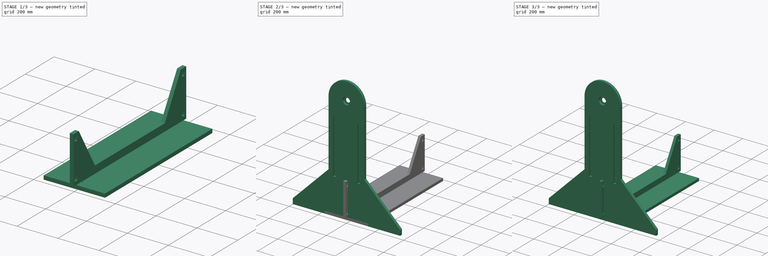
[diagram: build sequence overview — one tinted view per stage of 3, left to right]
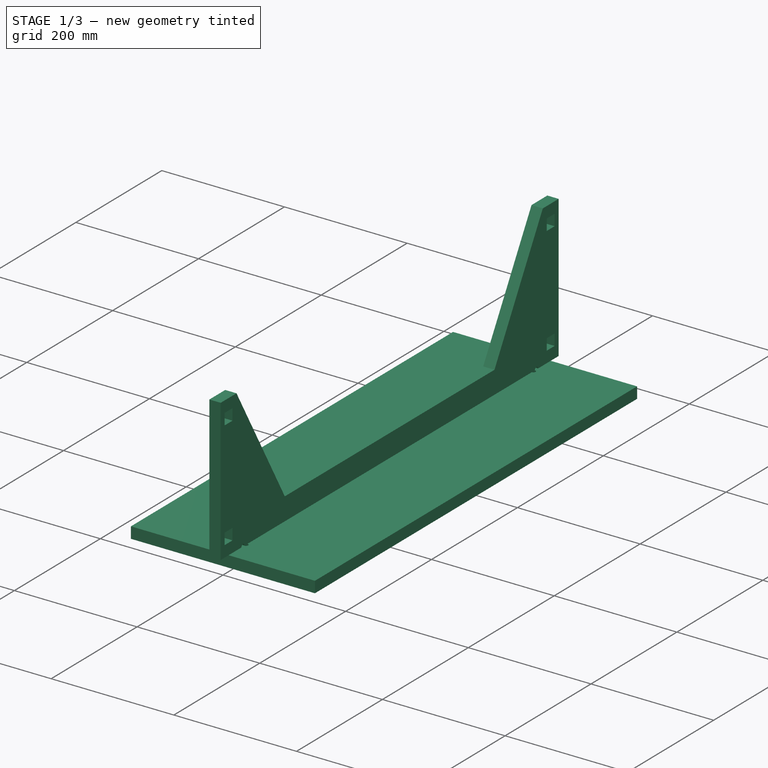
[diagram: stage 1 of 3 — iso view after this stage's code; geometry added in this stage tinted green]
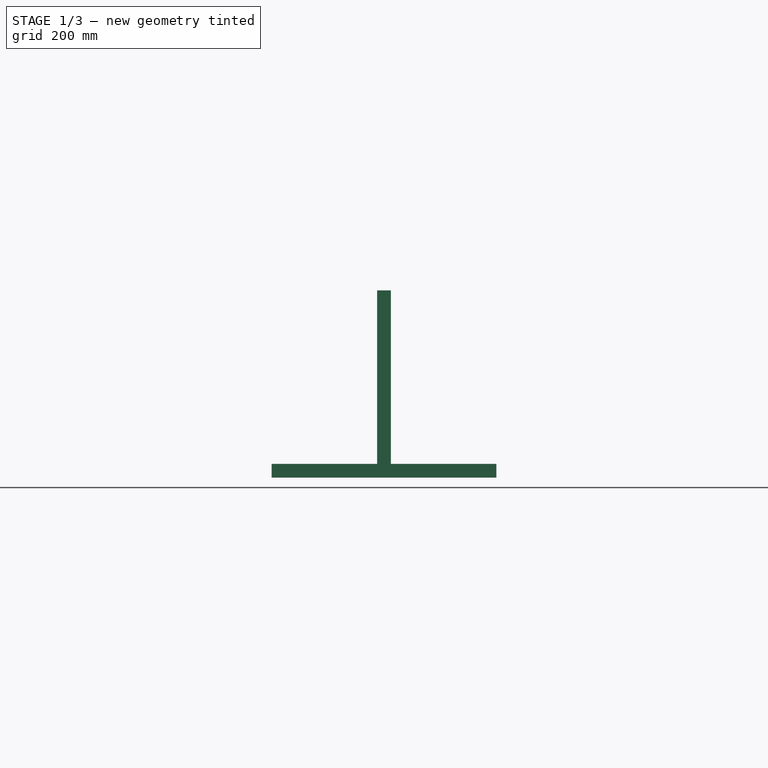
[diagram: stage 1 of 3 — front view after this stage's code; geometry added in this stage tinted green]
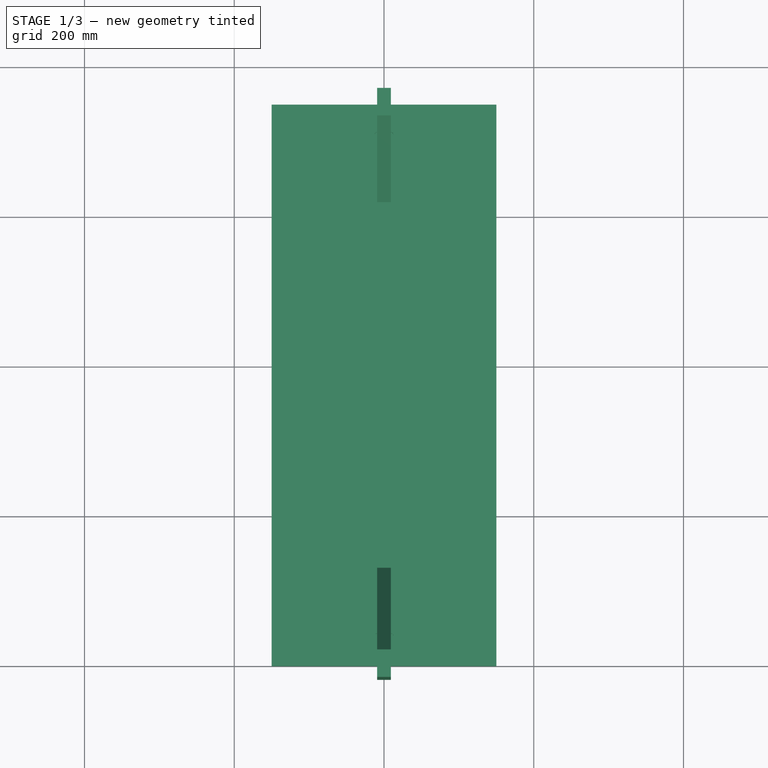
[diagram: stage 1 of 3 — top view after this stage's code; geometry added in this stage tinted green]
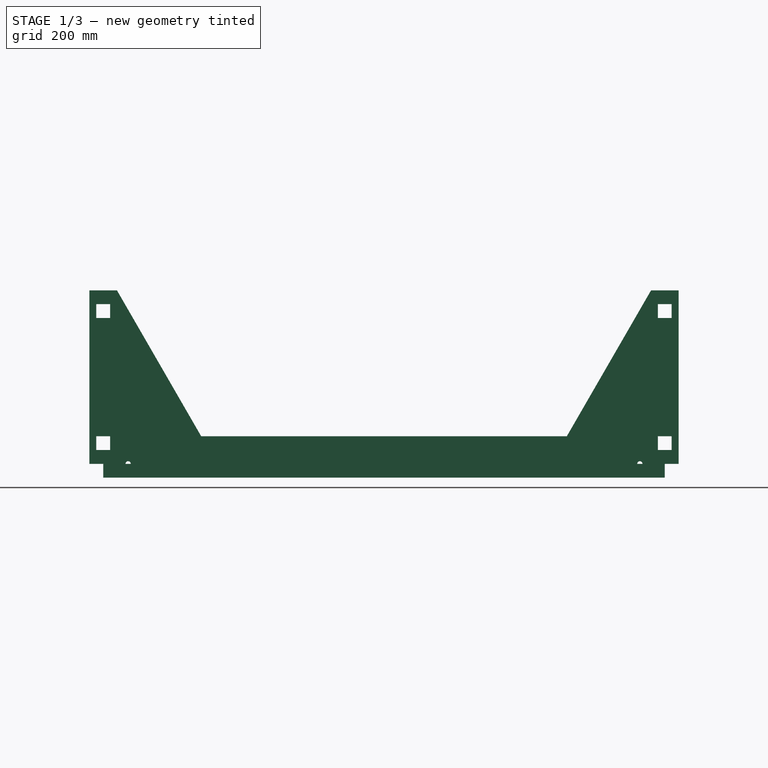
[diagram: stage 1 of 3 — right view after this stage's code; geometry added in this stage tinted green]
FCSTD DOCUMENT  (FreeCAD 0.19R23756 (Git))
Label: Support
License: All rights reserved
LicenseURL: http://en.wikipedia.org/wiki/All_rights_reserved
objects: Sketcher::SketchObject×6, PartDesign::Body×4, PartDesign::Pad×3, PartDesign::Pocket×2, Spreadsheet::Sheet×1, PartDesign::Hole×1, PartDesign::LinearPattern×1, PartDesign::FeatureBase×1
note: 24 computed .brp shape members not serialized (recipe doc carries the construction recipe); baked Part::Feature solids carry a one-line shape summary decoded from their .brp

FEATURE [PartDesign::Body] Body  label="sideplate1"
  Group = -> [Sketch,Pad,Pocket,Hole,LinearPattern]
  Origin = -> Origin
  Tip = -> LinearPattern
FEATURE [Sketcher::SketchObject] Sketch003
  FullyConstrained = true
  MapMode = 5
  Support = -> [XY_Plane001]
  expr: Constraints[10] = <<Dimensions>>.botplatew
  expr: Constraints[9] = <<Dimensions>>.width
  sketch-geometry (4):
    g0: LineSegment StartX=-150 StartY=750 StartZ=0 EndX=150 EndY=750 EndZ=0
    g1: LineSegment StartX=150 StartY=750 StartZ=0 EndX=150 EndY=0 EndZ=0
    g2: LineSegment StartX=150 StartY=0 StartZ=0 EndX=-150 EndY=0 EndZ=0
    g3: LineSegment StartX=-150 StartY=0 StartZ=0 EndX=-150 EndY=750 EndZ=0
  constraints (11):
    c: Coincident(g0,g1)
    c: Coincident(g1,g2)
    c: Coincident(g2,g3)
    c: Coincident(g3,g0)
    c: Horizontal(g0)
    c: Vertical(g1)
    c: Vertical(g3)
    c: Symmetric(g2,g1,g-2)
    c: PointOnObject(g2,g-1)
    c: Distance(g3) = 750
    c: Distance(g0) = 300
FEATURE [PartDesign::Pad] Pad001
  Direction = (1,1,1)
  Length = 18.4
  Length2 = 100
  Profile = -> Sketch003
  Type = 0
  expr: Length = <<Dimensions>>.thickness
FEATURE [PartDesign::Body] Body002  label="sideplate2"
  BaseFeature = -> Body
  Group = -> [Clone]
  Origin = -> Origin002
  Placement = pos=(-2.9e-14,748,0) rot=(0,0,1;3.14159rad)
  Tip = -> Clone
FEATURE [Sketcher::SketchObject] Sketch004
  FullyConstrained = true
  MapMode = 5
  Placement = pos=(0,0,0) rot=(0.57735,0.57735,0.57735;2.0944rad)
  Support = -> [YZ_Plane003]
  expr: Constraints[87] = <<Dimensions>>.thickness
  expr: Constraints[20] = <<Dimensions>>.thickness
  expr: Constraints[85] = <<Dimensions>>.thickness / 2
  expr: Constraints[37] = <<Dimensions>>.bitsize
  expr: Constraints[88] = <<Dimensions>>.thickness
  expr: Constraints[86] = <<Dimensions>>.thickness
  expr: Constraints[31] = <<Dimensions>>.width / 2 - <<Dimensions>>.thickness * 2
  expr: Constraints[25] = <<Dimensions>>.thickness * 3
  expr: Constraints[21] = <<Dimensions>>.height / 3
  expr: Constraints[32] = <<Dimensions>>.bearingW
  expr: Constraints[24] = <<Dimensions>>.thickness * 2
  expr: Constraints[22] = <<Dimensions>>.width / 2 - <<Dimensions>>.thickness
  expr: Constraints[90] = <<Dimensions>>.height / 3 - <<Dimensions>>.thickness
  expr: Constraints[11] = <<Dimensions>>.width / 2
  expr: Constraints[10] = <<Dimensions>>.height
  sketch-geometry (31):
    g0: LineSegment StartX=-18.4 StartY=18.4 StartZ=0 EndX=29.8 EndY=18.4 EndZ=0
    g1: LineSegment StartX=768.4 StartY=18.4 StartZ=0 EndX=768.4 EndY=250 EndZ=0
    g2: LineSegment StartX=768.4 StartY=250 StartZ=0 EndX=731.6 EndY=250 EndZ=0
    g3: LineSegment StartX=731.6 StartY=250 StartZ=0 EndX=619.132 EndY=55.2 EndZ=0
    g4: LineSegment StartX=619.132 StartY=55.2 StartZ=0 EndX=130.868 EndY=55.2 EndZ=0
    g5: LineSegment StartX=130.868 StartY=55.2 StartZ=0 EndX=18.4 EndY=250 EndZ=0
    g6: LineSegment StartX=18.4 StartY=250 StartZ=0 EndX=-18.4 EndY=250 EndZ=0
    g7: LineSegment StartX=-18.4 StartY=250 StartZ=0 EndX=-18.4 EndY=18.4 EndZ=0
    g8: LineSegment StartX=375 StartY=750 StartZ=0 EndX=375 EndY=0 EndZ=0
    g9: LineSegment StartX=713.2 StartY=18.4 StartZ=0 EndX=713.2 EndY=3.4 EndZ=0
    g10: LineSegment StartX=713.2 StartY=3.4 StartZ=0 EndX=36.8 EndY=3.4 EndZ=0
    g11: LineSegment StartX=36.8 StartY=3.4 StartZ=0 EndX=36.8 EndY=18.4 EndZ=0
    g12: LineSegment StartX=720.2 StartY=18.4 StartZ=0 EndX=768.4 EndY=18.4 EndZ=0
    g13: ArcOfCircle CenterX=33.3 CenterY=18.4 CenterZ=0 NormalX=0 NormalY=0 NormalZ=1 AngleXU=0 Radius=3.5 StartAngle=1e-16 EndAngle=3.14159
    g14: ArcOfCircle CenterX=716.7 CenterY=18.4 CenterZ=0 NormalX=0 NormalY=0 NormalZ=1 AngleXU=0 Radius=3.5 StartAngle=-1.8e-15 EndAngle=3.14159
    g15: LineSegment StartX=-9.2 StartY=231.6 StartZ=0 EndX=9.2 EndY=231.6 EndZ=0
    g16: LineSegment StartX=9.2 StartY=231.6 StartZ=0 EndX=9.2 EndY=213.2 EndZ=0
    g17: LineSegment StartX=9.2 StartY=213.2 StartZ=0 EndX=-9.2 EndY=213.2 EndZ=0
    g18: LineSegment StartX=-9.2 StartY=213.2 StartZ=0 EndX=-9.2 EndY=231.6 EndZ=0
    g19: LineSegment StartX=-9.2 StartY=55.2 StartZ=0 EndX=9.2 EndY=55.2 EndZ=0
    g20: LineSegment StartX=9.2 StartY=55.2 StartZ=0 EndX=9.2 EndY=36.8 EndZ=0
    g21: LineSegment StartX=9.2 StartY=36.8 StartZ=0 EndX=-9.2 EndY=36.8 EndZ=0
    g22: LineSegment StartX=-9.2 StartY=36.8 StartZ=0 EndX=-9.2 EndY=55.2 EndZ=0
    g23: LineSegment StartX=740.8 StartY=231.6 StartZ=0 EndX=759.2 EndY=231.6 EndZ=0
    g24: LineSegment StartX=759.2 StartY=231.6 StartZ=0 EndX=759.2 EndY=213.2 EndZ=0
    g25: LineSegment StartX=759.2 StartY=213.2 StartZ=0 EndX=740.8 EndY=213.2 EndZ=0
    g26: LineSegment StartX=740.8 StartY=213.2 StartZ=0 EndX=740.8 EndY=231.6 EndZ=0
    g27: LineSegment StartX=740.8 StartY=55.2 StartZ=0 EndX=759.2 EndY=55.2 EndZ=0
    g28: LineSegment StartX=759.2 StartY=55.2 StartZ=0 EndX=759.2 EndY=36.8 EndZ=0
    g29: LineSegment StartX=759.2 StartY=36.8 StartZ=0 EndX=740.8 EndY=36.8 EndZ=0
    g30: LineSegment StartX=740.8 StartY=36.8 StartZ=0 EndX=740.8 EndY=55.2 EndZ=0
  constraints (91):
    c: Horizontal(g0)
    c: Coincident(g1,g12)
    c: Vertical(g1)
    c: Coincident(g3,g2)
    c: Coincident(g4,g3)
    c: Coincident(g5,g4)
    c: Coincident(g6,g5)
    c: Coincident(g7,g6)
    c: Coincident(g7,g0)
    c: PointOnObject(g8,g-1)
    c: Distance(g8) = 750
    c: Distance(g8,g-1) = 375
    c: Symmetric(g4,g3,g8)
    c: Symmetric(g0,g12,g8)
    c: Vertical(g7)
    c: Equal(g7,g1)
    c: Horizontal(g6)
    c: Coincident(g2,g1)
    c: Horizontal(g2)
    c: Equal(g6,g2)
    c: Distance(g-1,g0) = 18.4
    c: Distance(g6,g-1) = 250
    c: Distance(g5,g8) = 356.6
    c: Angle(g7,g5) = 0.523599
    c: Distance(g6) = 36.8
    c: Distance(g4,g-1) = 55.2
    c: Coincident(g9,g10)
    c: Coincident(g10,g11)
    c: Vertical(g9)
    c: Vertical(g11)
    c: Tangent(g0,g12)
    c: Distance(g11,g8) = 338.2
    c: Distance(g11) = 15
    c: PointOnObject(g13,g0)
    c: Coincident(g13,g11)
    c: PointOnObject(g14,g12)
    c: Coincident(g14,g9)
    c: Diameter(g14) = 7
    c: Equal(g13,g14)
    c: Coincident(g0,g13)
    c: Coincident(g12,g14)
    c: Horizontal(g13,g11)
    c: Horizontal(g14,g9)
    c: Symmetric(g9,g10,g8)
    c: Coincident(g15,g16)
    c: Coincident(g16,g17)
    c: Coincident(g17,g18)
    c: Coincident(g18,g15)
    c: Horizontal(g15)
    c: Horizontal(g17)
    c: Vertical(g16)
    c: Vertical(g18)
    c: Coincident(g19,g20)
    c: Coincident(g20,g21)
    c: Coincident(g21,g22)
    c: Coincident(g22,g19)
    c: Horizontal(g19)
    c: Horizontal(g21)
    c: Vertical(g20)
    c: Vertical(g22)
    c: Vertical(g19,g17)
    c: Vertical(g16,g19)
    c: Coincident(g23,g24)
    c: Coincident(g24,g25)
    c: Coincident(g25,g26)
    c: Coincident(g26,g23)
    c: Horizontal(g23)
    c: Horizontal(g25)
    c: Vertical(g24)
    c: Vertical(g26)
    c: Coincident(g27,g28)
    c: Coincident(g28,g29)
    c: Coincident(g29,g30)
    c: Coincident(g30,g27)
    c: Horizontal(g27)
    c: Horizontal(g29)
    c: Vertical(g28)
    c: Vertical(g30)
    c: Vertical(g27,g24)
    c: Vertical(g25,g27)
    c: Horizontal(g25,g16)
    c: Equal(g16,g26)
    c: Equal(g28,g24)
    c: Equal(g30,g20)
    c: Equal(g19,g27)
    c: Distance(g21,g7) = 9.2
    c: Distance(g21) = 18.4
    c: Distance(g21,g0) = 18.4
    c: Distance(g22) = 18.4
    c: Symmetric(g29,g20,g8)
    c: Distance(g15,g-1) = 231.6
FEATURE [PartDesign::Pad] Pad002
  Direction = (1,1,1)
  Length = 18.4
  Length2 = 100
  Midplane = true
  Placement = pos=(0,0,0) rot=(0.57735,0.57735,0.57735;2.0944rad)
  Profile = -> Sketch004
  Type = 0
  expr: Length = <<Dimensions>>.thickness
FEATURE [PartDesign::Body] Body003  label="supportplate"
  Group = -> [Sketch004,Pad002]
  Origin = -> Origin003
  Tip = -> Pad002
FEATURE [Sketcher::SketchObject] Sketch005
  FullyConstrained = true
  MapMode = 5
  Placement = pos=(0,0,18.4) rot=(0,0,1;0rad)
  Support = -> [Pad001]
  expr: Constraints[29] = <<Dimensions>>.width - <<Dimensions>>.thickness * 4
  expr: Constraints[19] = <<Dimensions>>.bitsize
  expr: Constraints[7] = <<Dimensions>>.thickness * 2
  expr: Constraints[6] = <<Dimensions>>.thickness
  expr: Constraints[2] = <<Dimensions>>.width
  sketch-geometry (9):
    g0: LineSegment StartX=0 StartY=0 StartZ=0 EndX=0 EndY=750 EndZ=0
    g1: LineSegment StartX=-9.2 StartY=713.2 StartZ=0 EndX=9.2 EndY=713.2 EndZ=0
    g2: LineSegment StartX=9.2 StartY=706.2 StartZ=0 EndX=9.2 EndY=43.8 EndZ=0
    g3: LineSegment StartX=9.2 StartY=36.8 StartZ=0 EndX=-9.2 EndY=36.8 EndZ=0
    g4: LineSegment StartX=-9.2 StartY=43.8 StartZ=0 EndX=-9.2 EndY=706.2 EndZ=0
    g5: ArcOfCircle CenterX=9.2 CenterY=709.7 CenterZ=0 NormalX=0 NormalY=0 NormalZ=1 AngleXU=0 Radius=3.5 StartAngle=4.71239 EndAngle=7.85398
    g6: ArcOfCircle CenterX=-9.2 CenterY=709.7 CenterZ=0 NormalX=0 NormalY=0 NormalZ=1 AngleXU=0 Radius=3.5 StartAngle=1.5708 EndAngle=4.71239
    g7: ArcOfCircle CenterX=-9.2 CenterY=40.3 CenterZ=0 NormalX=0 NormalY=0 NormalZ=1 AngleXU=0 Radius=3.5 StartAngle=1.5708 EndAngle=4.71239
    g8: ArcOfCircle CenterX=9.2 CenterY=40.3 CenterZ=0 NormalX=0 NormalY=0 NormalZ=1 AngleXU=0 Radius=3.5 StartAngle=4.71239 EndAngle=7.85398
  constraints (30):
    c: Coincident(g0,g-1)
    c: Vertical(g0)
    c: Distance(g0) = 750
    c: Horizontal(g1)
    c: Vertical(g2)
    c: Vertical(g4)
    c: Distance(g3) = 18.4
    c: DistanceY(g-1,g3) = 36.8
    c: PointOnObject(g5,g2)
    c: Coincident(g5,g1)
    c: PointOnObject(g6,g4)
    c: Coincident(g6,g1)
    c: PointOnObject(g7,g4)
    c: Coincident(g7,g3)
    c: PointOnObject(g8,g2)
    c: Coincident(g8,g3)
    c: Horizontal(g7,g8)
    c: Equal(g6,g5)
    c: Equal(g5,g7)
    c: Diameter(g7) = 7
    c: Coincident(g4,g7)
    c: Vertical(g7,g3)
    c: Coincident(g2,g8)
    c: Coincident(g2,g5)
    c: Coincident(g4,g6)
    c: Vertical(g1,g6)
    c: Vertical(g1,g5)
    c: Vertical(g3,g8)
    c: Symmetric(g3,g3,g0)
    c: Distance(g3,g1) = 676.4
FEATURE [PartDesign::Pocket] Pocket001
  BaseFeature = -> Pad001
  Length = 15
  Length2 = 100
  Profile = -> Sketch005
  Type = 0
  expr: Length = <<Dimensions>>.bearingW
FEATURE [PartDesign::Body] Body001  label="bottomplate"
  Group = -> [Sketch003,Pad001,Sketch005,Pocket001]
  Origin = -> Origin001
  Tip = -> Pocket001
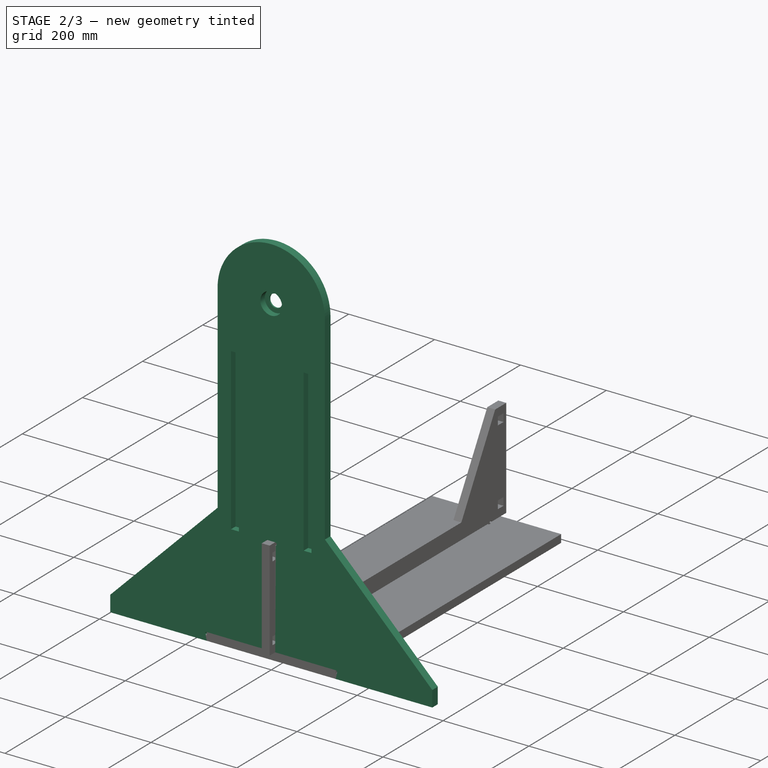
[diagram: stage 2 of 3 — iso view after this stage's code; geometry added in this stage tinted green]
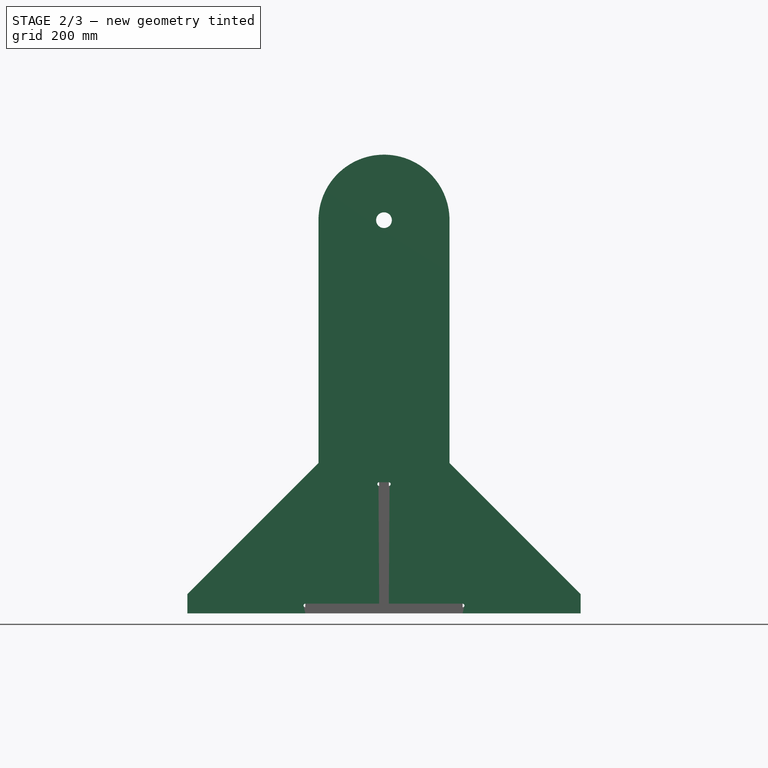
[diagram: stage 2 of 3 — front view after this stage's code; geometry added in this stage tinted green]
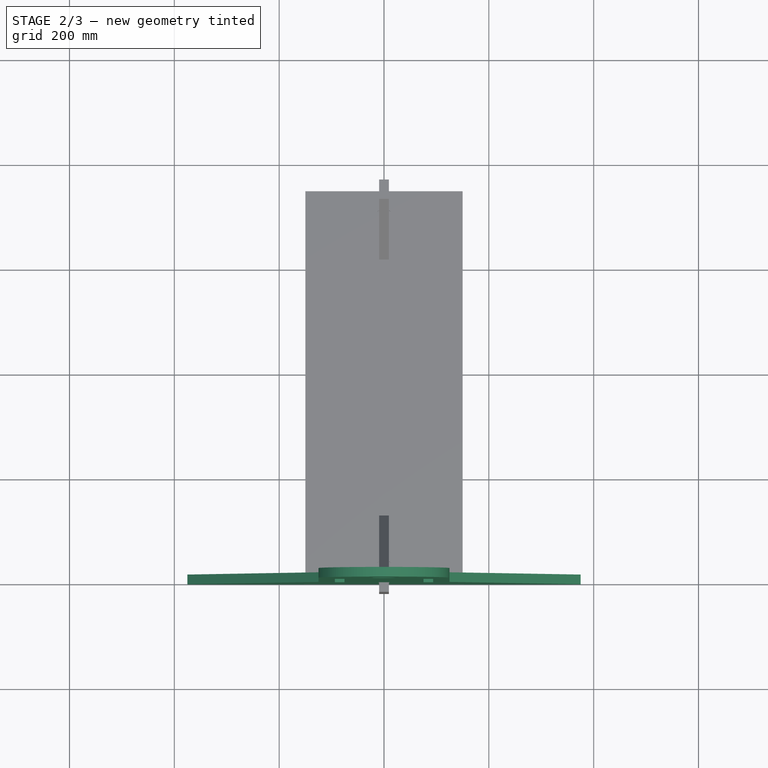
[diagram: stage 2 of 3 — top view after this stage's code; geometry added in this stage tinted green]
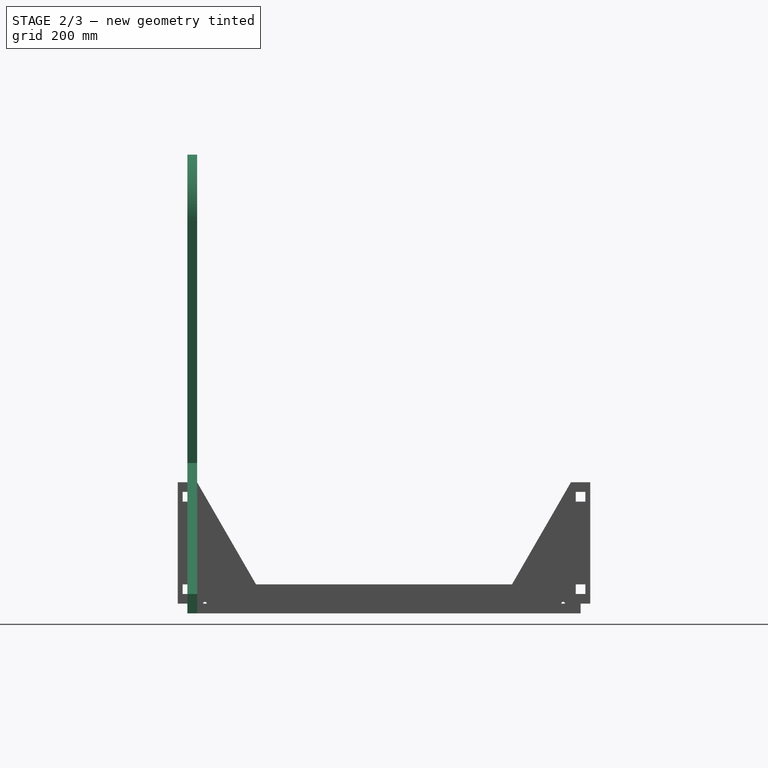
[diagram: stage 2 of 3 — right view after this stage's code; geometry added in this stage tinted green]
FEATURE [Sketcher::SketchObject] Sketch
  FullyConstrained = true
  MapMode = 5
  Placement = pos=(0,0,0) rot=(1,0,0;1.5708rad)
  Support = -> [XZ_Plane]
  expr: Constraints[52] = <<Dimensions>>.botplatew
  expr: Constraints[16] = 2 * <<Dimensions>>.thickness
  expr: Constraints[63] = <<Dimensions>>.height / 3
  expr: Constraints[49] = <<Dimensions>>.thickness
  expr: Constraints[18] = <<Dimensions>>.shaftD
  expr: Constraints[31] = <<Dimensions>>.thickness
  expr: Constraints[7] = <<Dimensions>>.width / 3
  expr: Constraints[42] = <<Dimensions>>.height
  expr: Constraints[32] = <<Dimensions>>.bitsize
  expr: Constraints[64] = <<Dimensions>>.bitsize
  expr: Constraints[39] = <<Dimensions>>.width
  sketch-geometry (22):
    g0: LineSegment StartX=125 StartY=750 StartZ=0 EndX=125 EndY=286.8 EndZ=0
    g1: LineSegment StartX=-125 StartY=286.8 StartZ=0 EndX=-125 EndY=750 EndZ=0
    g2: LineSegment StartX=375 StartY=36.8 StartZ=0 EndX=375 EndY=0 EndZ=0
    g3: LineSegment StartX=-375 StartY=0 StartZ=0 EndX=-375 EndY=36.8 EndZ=0
    g4: ArcOfCircle CenterX=5.2e-15 CenterY=750 CenterZ=0 NormalX=0 NormalY=0 NormalZ=1 AngleXU=0 Radius=125 StartAngle=0 EndAngle=3.14159
    g5: LineSegment StartX=-375 StartY=36.8 StartZ=0 EndX=-125 EndY=286.8 EndZ=0
    g6: LineSegment StartX=125 StartY=286.8 StartZ=0 EndX=375 EndY=36.8 EndZ=0
    g7: Circle CenterX=5.2e-15 CenterY=750 CenterZ=0 NormalX=0 NormalY=0 NormalZ=1 AngleXU=0 Radius=15
    g8: LineSegment StartX=-150 StartY=18.4 StartZ=0 EndX=-9.2 EndY=18.4 EndZ=0
    g9: LineSegment StartX=150 StartY=11.4 StartZ=0 EndX=150 EndY=0 EndZ=0
    g10: LineSegment StartX=-150 StartY=0 StartZ=0 EndX=-150 EndY=18.4 EndZ=0
    g11: ArcOfCircle CenterX=-150 CenterY=14.9 CenterZ=0 NormalX=0 NormalY=0 NormalZ=1 AngleXU=0 Radius=3.5 StartAngle=1.5708 EndAngle=1.5708
    g12: ArcOfCircle CenterX=150 CenterY=14.9 CenterZ=0 NormalX=0 NormalY=0 NormalZ=1 AngleXU=0 Radius=3.5 StartAngle=4.71239 EndAngle=7.85398
    g13: LineSegment StartX=-375 StartY=0 StartZ=0 EndX=-150 EndY=0 EndZ=0
    g14: LineSegment StartX=150 StartY=0 StartZ=0 EndX=375 EndY=0 EndZ=0
    g15: LineSegment StartX=-9.2 StartY=18.4 StartZ=0 EndX=9.2 EndY=18.4 EndZ=0
    g16: LineSegment StartX=9.2 StartY=18.4 StartZ=0 EndX=9.2 EndY=243 EndZ=0
    g17: LineSegment StartX=9.2 StartY=250 StartZ=0 EndX=-9.2 EndY=250 EndZ=0
    g18: LineSegment StartX=-9.2 StartY=243 StartZ=0 EndX=-9.2 EndY=18.4 EndZ=0
    g19: LineSegment StartX=9.2 StartY=18.4 StartZ=0 EndX=150 EndY=18.4 EndZ=0
    g20: ArcOfCircle CenterX=-9.2 CenterY=246.5 CenterZ=0 NormalX=0 NormalY=0 NormalZ=1 AngleXU=0 Radius=3.5 StartAngle=1.5708 EndAngle=4.71239
    g21: ArcOfCircle CenterX=9.2 CenterY=246.5 CenterZ=0 NormalX=0 NormalY=0 NormalZ=1 AngleXU=0 Radius=3.5 StartAngle=4.71239 EndAngle=7.85398
  constraints (65):
    c: Vertical(g0)
    c: Vertical(g1)
    c: Vertical(g2)
    c: Vertical(g3)
    c: Symmetric(g1,g0,g-2)
    c: Coincident(g6,g0)
    c: Symmetric(g2,g3,g-2)
    c: Diameter(g4) = 250
    c: Coincident(g0,g4)
    c: Coincident(g4,g1)
    c: Horizontal(g1,g0)
    c: Horizontal(g4,g1)
    c: Coincident(g1,g5)
    c: Coincident(g5,g3)
    c: Coincident(g6,g2)
    c: Equal(g3,g2)
    c: Distance(g3) = 36.8
    c: Coincident(g7,g4)
    c: Diameter(g7) = 30
    c: Vertical(g9)
    c: Vertical(g10)
    c: Symmetric(g8,g19,g-2)
    c: PointOnObject(g11,g10)
    c: Coincident(g11,g8)
    c: PointOnObject(g12,g9)
    c: Coincident(g12,g19)
    c: Equal(g11,g12)
    c: Coincident(g10,g11)
    c: Coincident(g9,g12)
    c: Vertical(g8,g11)
    c: Vertical(g19,g12)
    c: Distance(g19,g9) = 18.4
    c: Diameter(g11) = 7
    c: Coincident(g13,g3)
    c: Coincident(g13,g10)
    c: Horizontal(g13)
    c: Coincident(g14,g9)
    c: Coincident(g14,g2)
    c: Horizontal(g14)
    c: Distance(g3,g2) = 750
    c: PointOnObject(g3,g-1)
    c: Angle(g13,g5) = 0.785398
    c: Distance(g4,g-1) = 750
    c: Coincident(g15,g16)
    c: Coincident(g18,g15)
    c: Horizontal(g17)
    c: Vertical(g16)
    c: Vertical(g18)
    c: Symmetric(g15,g15,g-2)
    c: Distance(g17) = 18.4
    c: Coincident(g8,g15)
    c: Tangent(g8,g19)
    c: Distance(g11,g12) = 300
    c: Equal(g8,g19)
    c: PointOnObject(g20,g18)
    c: Coincident(g20,g17)
    c: PointOnObject(g21,g16)
    c: Coincident(g21,g17)
    c: Equal(g20,g21)
    c: Coincident(g18,g20)
    c: Coincident(g16,g21)
    c: Vertical(g17,g20)
    c: Vertical(g17,g21)
    c: Distance(g17,g-1) = 250
    c: Diameter(g20) = 7
FEATURE [Spreadsheet::Sheet] Spreadsheet  label="Dimensions"
  cells = B2=thickness; C2(thickness)=18.4; B3=height; C3(height)=750; B4=width; C4(width)=750; B5=shaftD; C5(shaftD)=30; B6=botplatew; C6(botplatew)=300; B7=bitsize; C7(bitsize)=7; B8=bearingD; C8(bearindD)=50.8; B9=bearingW; C9(bearingW)=15
FEATURE [Sketcher::SketchObject] Sketch001
  FullyConstrained = true
  MapMode = 3
  Placement = pos=(0,0,0) rot=(1,0,0;1.5708rad)
  expr: Constraints[27] = <<Dimensions>>.height
  expr: Constraints[26] = <<Dimensions>>.height
  expr: Constraints[24] = <<Dimensions>>.height / 3
  expr: Constraints[23] = <<Dimensions>>.width / 4
  expr: Constraints[11] = <<Dimensions>>.thickness
  expr: Constraints[25] = <<Dimensions>>.width / 2
  expr: Constraints[2] = <<Dimensions>>.bearindD
  sketch-geometry (10):
    g0: LineSegment StartX=0 StartY=0 StartZ=0 EndX=0 EndY=750 EndZ=0
    g1: Circle CenterX=0 CenterY=750 CenterZ=0 NormalX=0 NormalY=0 NormalZ=1 AngleXU=0 Radius=25.4
    g2: LineSegment StartX=-75.35 StartY=625 StartZ=0 EndX=-93.75 EndY=625 EndZ=0
    g3: LineSegment StartX=-93.75 StartY=625 StartZ=0 EndX=-93.75 EndY=250 EndZ=0
    g4: LineSegment StartX=-93.75 StartY=250 StartZ=0 EndX=-75.35 EndY=250 EndZ=0
    g5: LineSegment StartX=-75.35 StartY=250 StartZ=0 EndX=-75.35 EndY=625 EndZ=0
    g6: LineSegment StartX=93.75 StartY=625 StartZ=0 EndX=75.35 EndY=625 EndZ=0
    g7: LineSegment StartX=75.35 StartY=625 StartZ=0 EndX=75.35 EndY=250 EndZ=0
    g8: LineSegment StartX=75.35 StartY=250 StartZ=0 EndX=93.75 EndY=250 EndZ=0
    g9: LineSegment StartX=93.75 StartY=250 StartZ=0 EndX=93.75 EndY=625 EndZ=0
  constraints (29):
    c: Coincident(g0,g-1)
    c: Vertical(g0)
    c: Diameter(g1) = 50.8
    c: Coincident(g2,g3)
    c: Coincident(g3,g4)
    c: Coincident(g4,g5)
    c: Coincident(g5,g2)
    c: Horizontal(g2)
    c: Horizontal(g4)
    c: Vertical(g3)
    c: Vertical(g5)
    c: Distance(g2) = 18.4
    c: Coincident(g6,g7)
    c: Coincident(g7,g8)
    c: Coincident(g8,g9)
    c: Coincident(g9,g6)
    c: Horizontal(g6)
    c: Horizontal(g8)
    c: Vertical(g7)
    c: Vertical(g9)
    c: Equal(g2,g6)
    c: Equal(g5,g9)
    c: Symmetric(g3,g8,g0)
    c: Distance(g3,g8) = 187.5
    c: DistanceY(g-1,g4) = 250
    c: Distance(g3) = 375
    c: Distance(g1,g-1) = 750
    c: Distance(g0) = 750
    c: PointOnObject(g1,g0)
FEATURE [Sketcher::SketchObject] Sketch002
  FullyConstrained = true
  Placement = pos=(0,0,0) rot=(1,0,0;1.5708rad)
  expr: Constraints[7] = <<Dimensions>>.height
  expr: Constraints[6] = <<Dimensions>>.width / 4 - <<Dimensions>>.thickness
  expr: Constraints[3] = <<Dimensions>>.bitsize
  expr: Constraints[2] = <<Dimensions>>.height / 3 + <<Dimensions>>.thickness
  sketch-geometry (3):
    g0: LineSegment StartX=0 StartY=0 StartZ=0 EndX=0 EndY=750 EndZ=0
    g1: Circle CenterX=84.55 CenterY=268.4 CenterZ=0 NormalX=0 NormalY=0 NormalZ=1 AngleXU=0 Radius=3.5
    g2: Circle CenterX=-84.55 CenterY=268.4 CenterZ=0 NormalX=0 NormalY=0 NormalZ=1 AngleXU=0 Radius=3.5
  constraints (8):
    c: Coincident(g0,g-1)
    c: Vertical(g0)
    c: Distance(g1,g-1) = 268.4
    c: Diameter(g1) = 7
    c: Equal(g2,g1)
    c: Symmetric(g2,g1,g0)
    c: Distance(g2,g1) = 169.1
    c: Distance(g0) = 750
FEATURE [PartDesign::Pad] Pad
  Direction = (1,1,1)
  Length = 18.4
  Length2 = 100
  Placement = pos=(0,0,0) rot=(1,0,0;1.5708rad)
  Profile = -> Sketch
  Reversed = true
  Type = 0
  expr: Length = <<Dimensions>>.thickness
FEATURE [PartDesign::Pocket] Pocket
  BaseFeature = -> Pad
  Length = 15
  Length2 = 100
  Placement = pos=(0,0,0) rot=(1,0,0;1.5708rad)
  Profile = -> Sketch001
  Type = 0
  expr: Length = <<Dimensions>>.bearingW
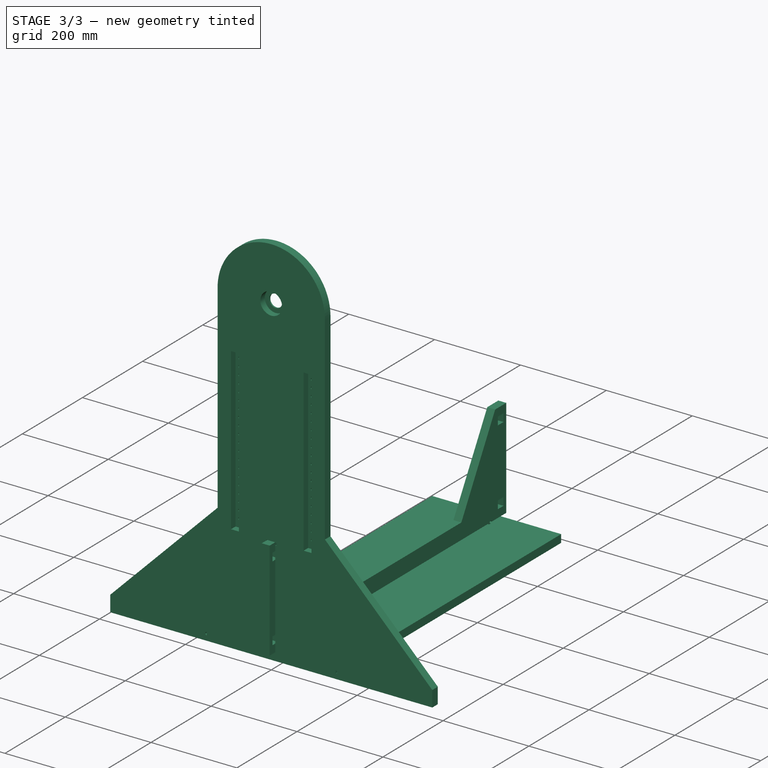
[diagram: stage 3 of 3 — iso view after this stage's code; geometry added in this stage tinted green]
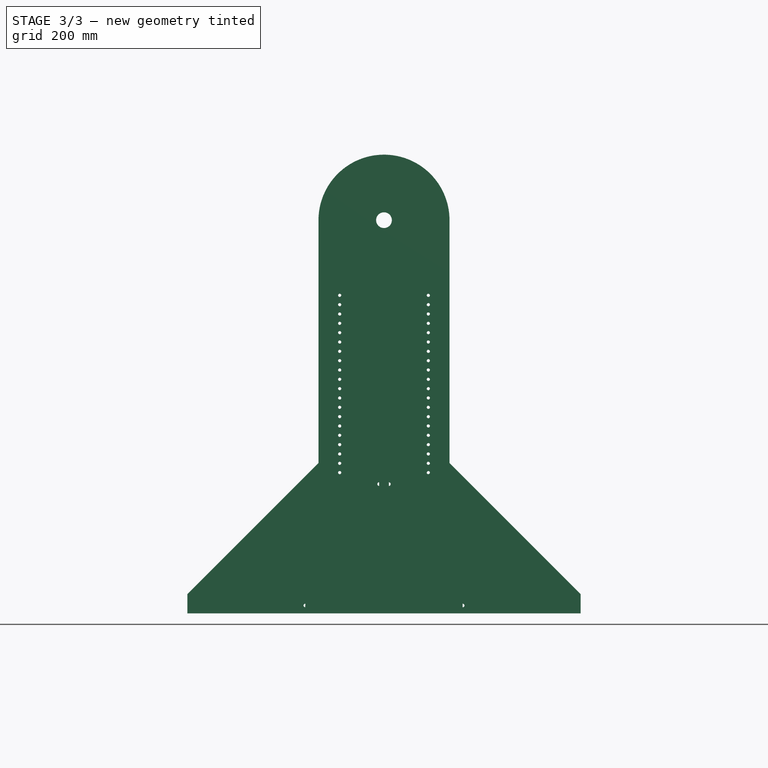
[diagram: stage 3 of 3 — front view after this stage's code; geometry added in this stage tinted green]
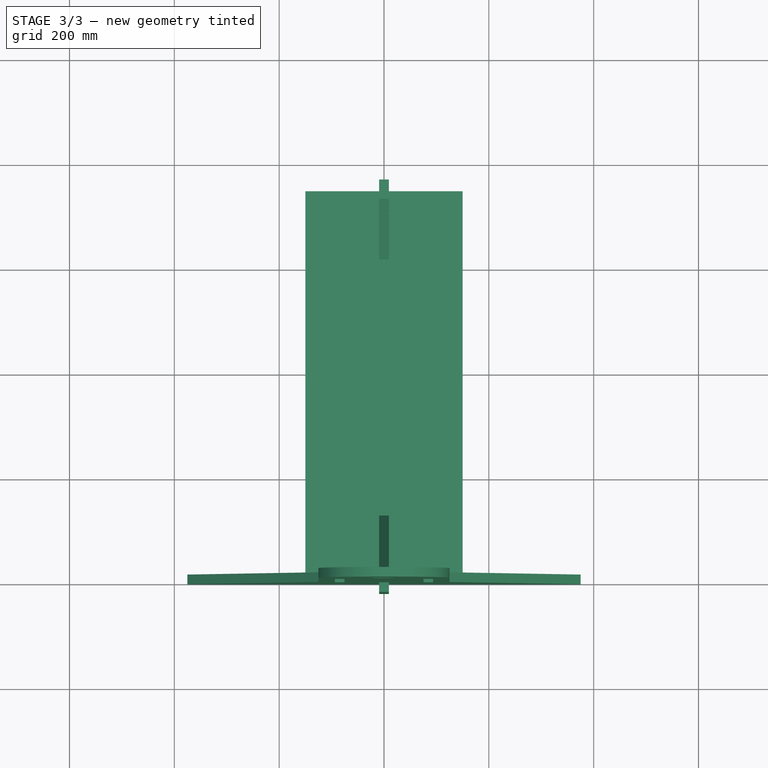
[diagram: stage 3 of 3 — top view after this stage's code; geometry added in this stage tinted green]
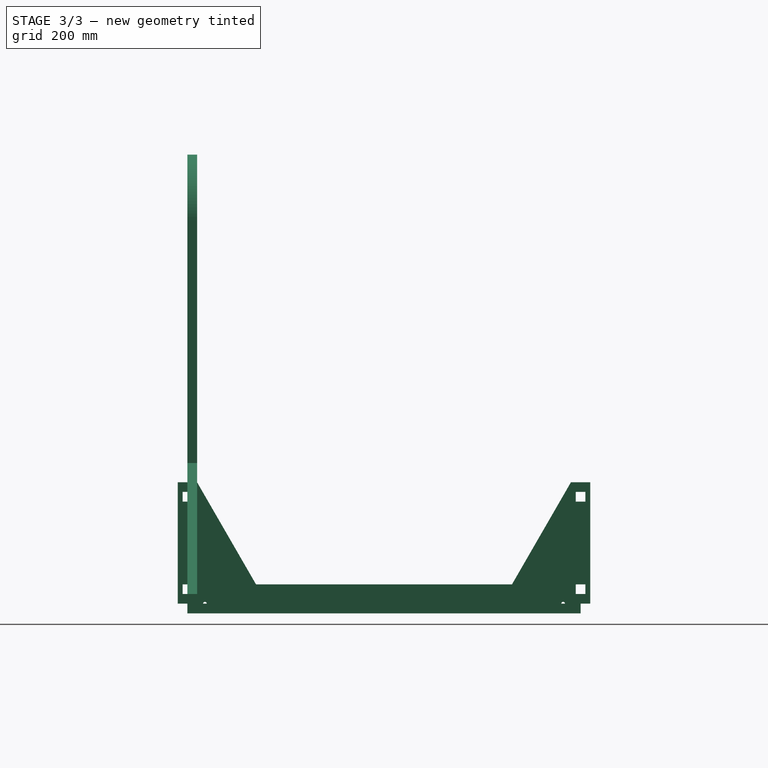
[diagram: stage 3 of 3 — right view after this stage's code; geometry added in this stage tinted green]
FEATURE [PartDesign::Hole] Hole
  BaseFeature = -> Pocket
  Depth = 25
  DepthType = 0
  Diameter = 6
  DrillPoint = 1
  DrillPointAngle = 118
  HoleCutCountersinkAngle = 90
  HoleCutDepth = 0
  HoleCutDiameter = 0
  HoleCutType = 0
  ModelActualThread = false
  Placement = pos=(0,0,0) rot=(1,0,0;1.5708rad)
  Profile = -> Sketch002
  Tapered = false
  TaperedAngle = 90
  ThreadAngle = 0
  ThreadClass = 0
  ThreadCutOffInner = 0
  ThreadCutOffOuter = 0
  ThreadDirection = 0
  ThreadFit = 0
  ThreadPitch = 0
  ThreadSize = 0
  ThreadType = 0
  Threaded = false
FEATURE [PartDesign::LinearPattern] LinearPattern
  BaseFeature = -> Hole
  Direction = -> Sketch002 [V_Axis]
  Length = 338.2
  Occurrences = 20
  Originals = -> [Hole]
  Placement = pos=(0,0,0) rot=(1,0,0;1.5708rad)
  expr: Occurrences = <<Dimensions>>.width / <<Dimensions>>.thickness / 2
  expr: Length = <<Dimensions>>.width / 2 - 2 * <<Dimensions>>.thickness
FEATURE [PartDesign::FeatureBase] Clone
  BaseFeature = -> Body
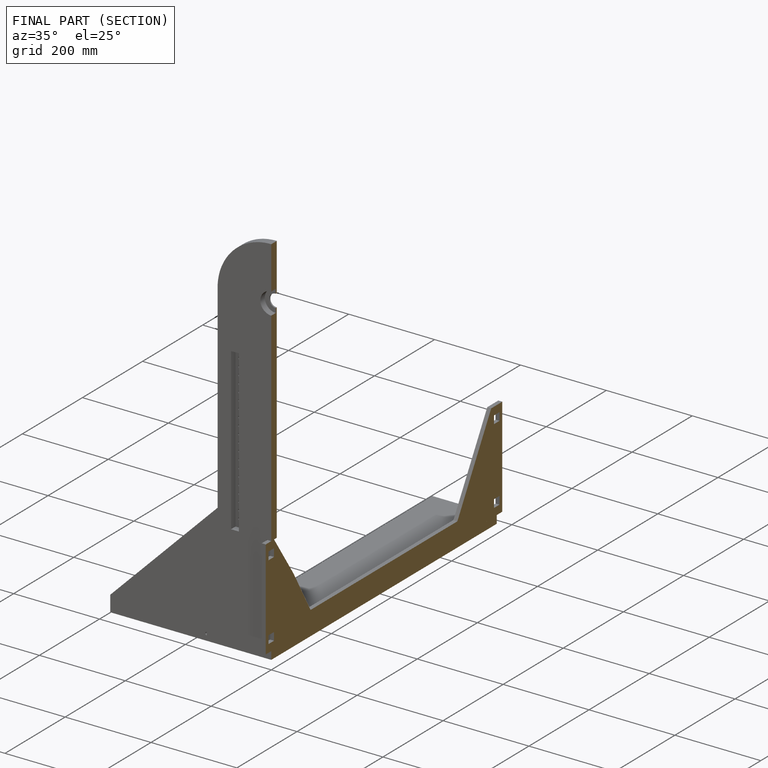
[diagram: finished part — half-section view (interior)]
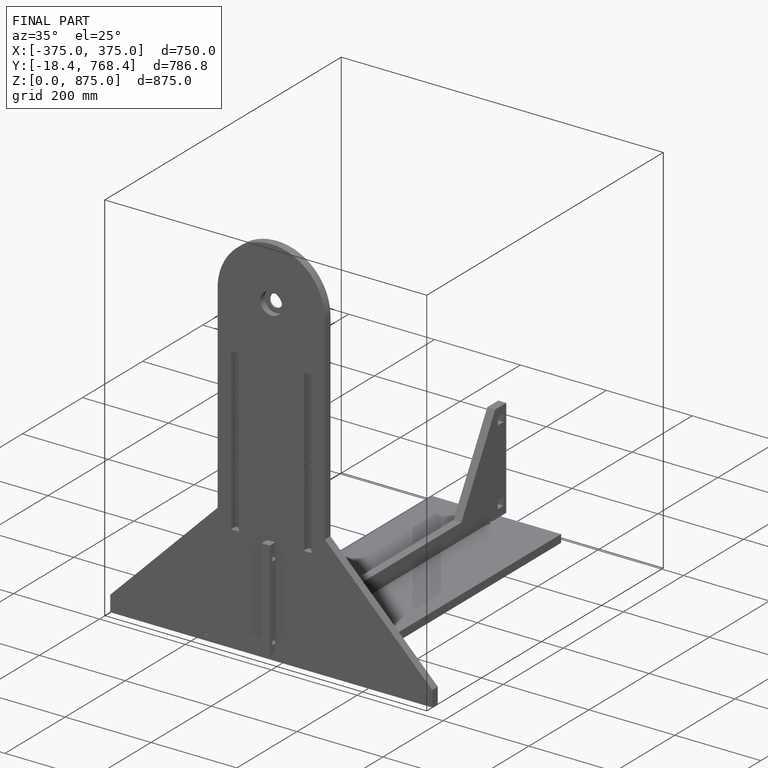
[diagram: finished part — iso view with bounding-box wireframe]
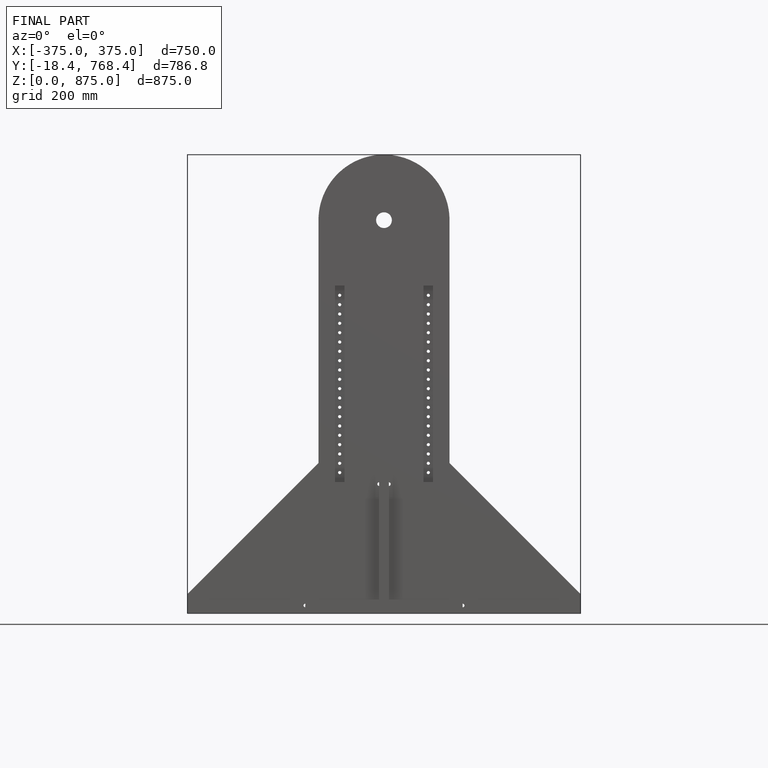
[diagram: finished part — front view with bounding-box wireframe]
